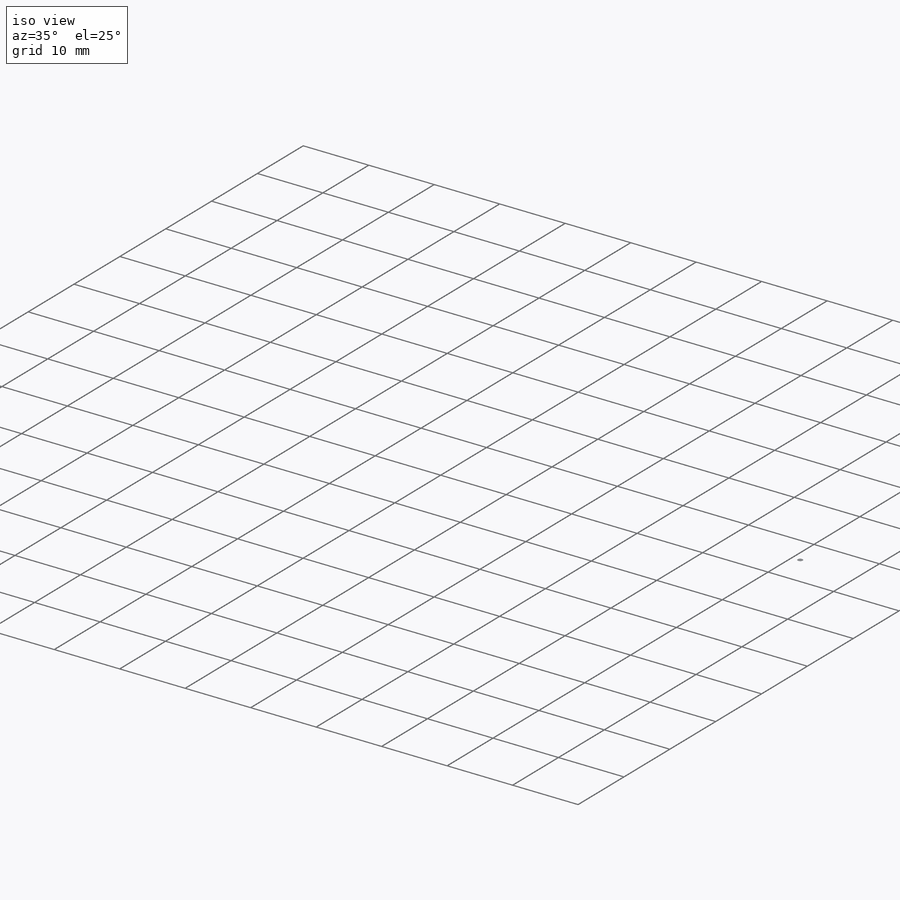
[diagram: iso view]
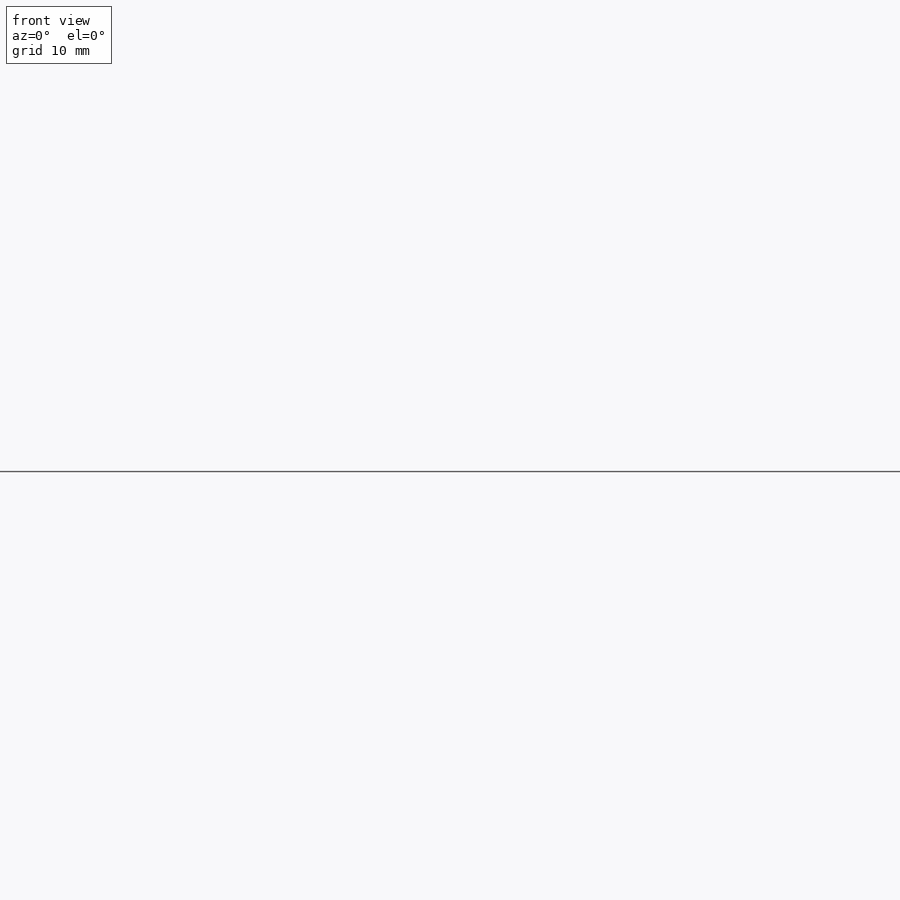
[diagram: front view]
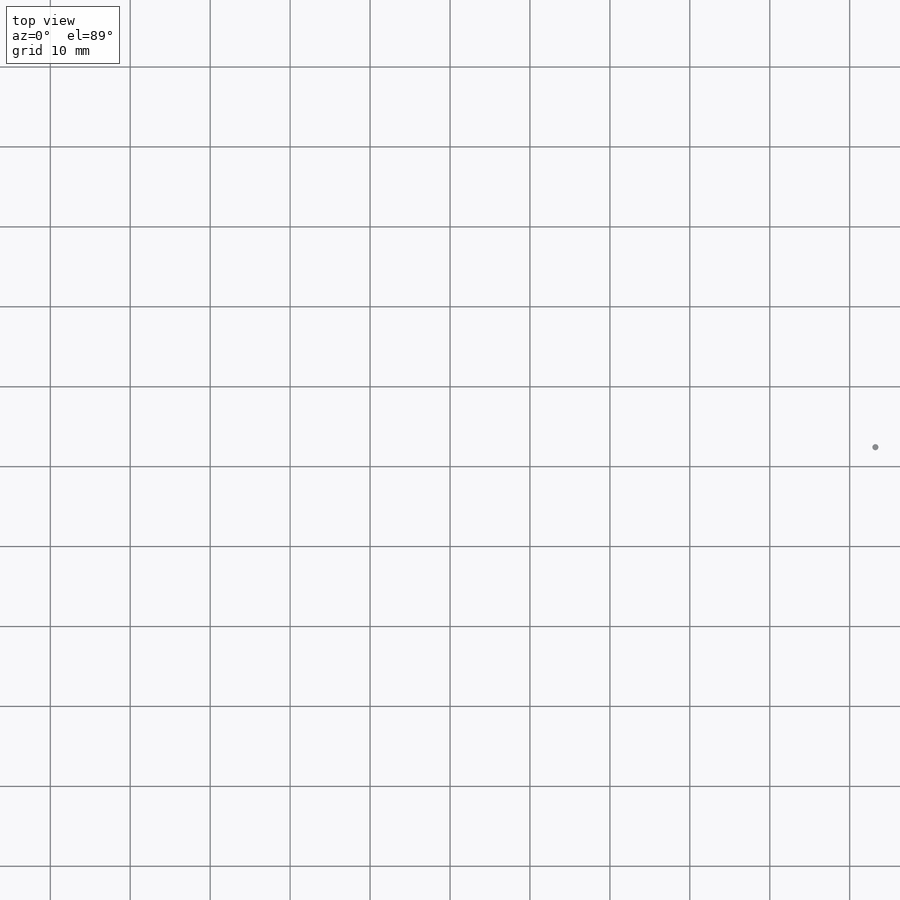
[diagram: top view]
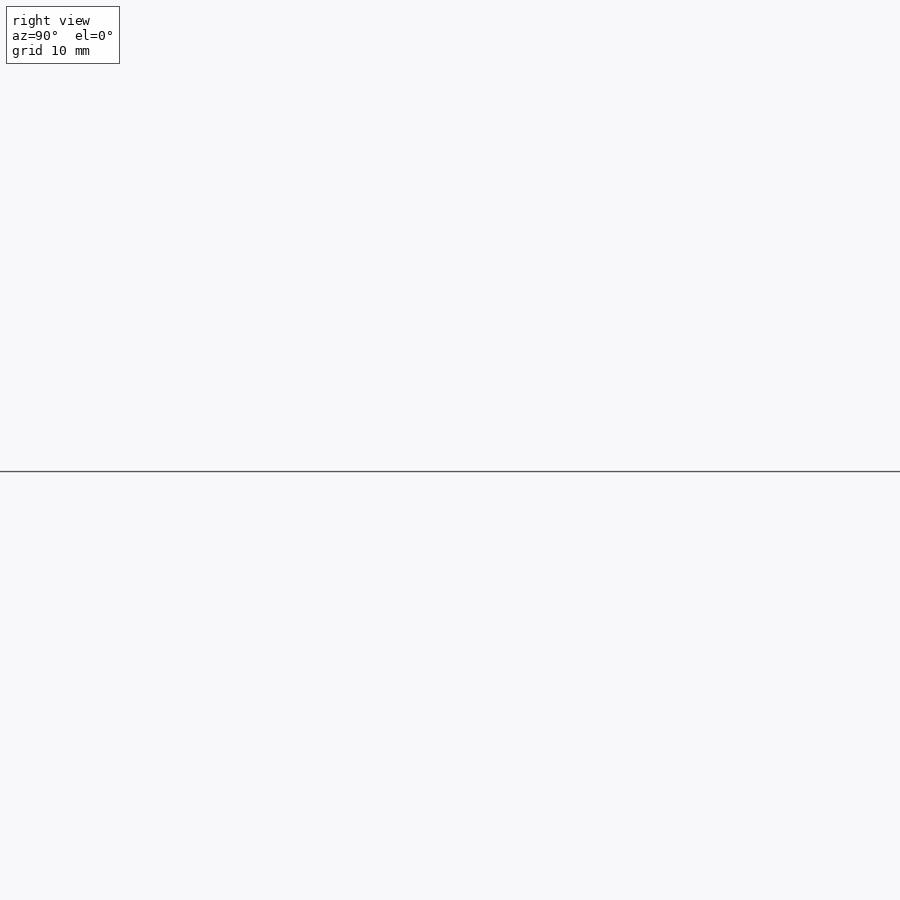
[diagram: right view]
SOLIDWORKS PART (.sldprt)
format: sldprt  version: not decoded by parser v0  size: 1,595,392 bytes
history: native  units: mm
features: sketch x4, plane x2, material x1, helix x1, sweep x1 (+13 scaffold rows collapsed)
feature tree (22):
  scaffold x13  (default folders/planes/origin — collapsed)
  material  "Material <not specified>"
  plane  "Plane1"  Offset=53.213mm
  plane  "Plane2"  Offset=53.213mm
  sketch  "Sketch1"  dims[D1=4.826mm]
  helix  "Helix/Spiral1"  Pitch=106.43108mm
  sketch  "Sketch3"  dims[D1=4.826mm]
  sketch  "Sketch4"  dims[D1=4.826mm]
  sketch  "Sketch6"  dims[D1=0.762mm]
  sweep  "Sweep1"
decode coverage: 5 of 6 modeling features carry decoded parameters
note: suppression state not decoded; provenance and decode notes live in map.json
